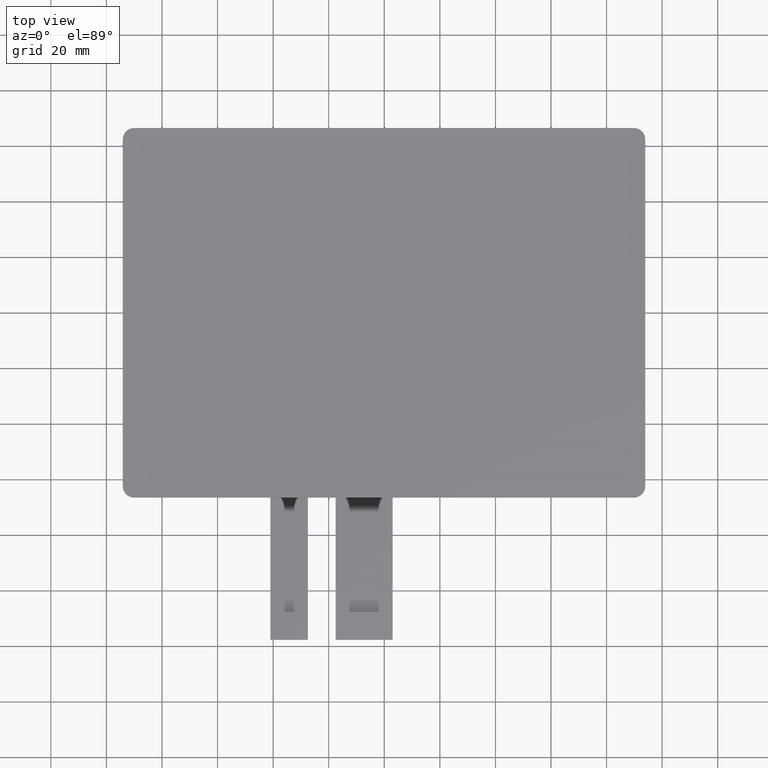
[diagram: clean part render]
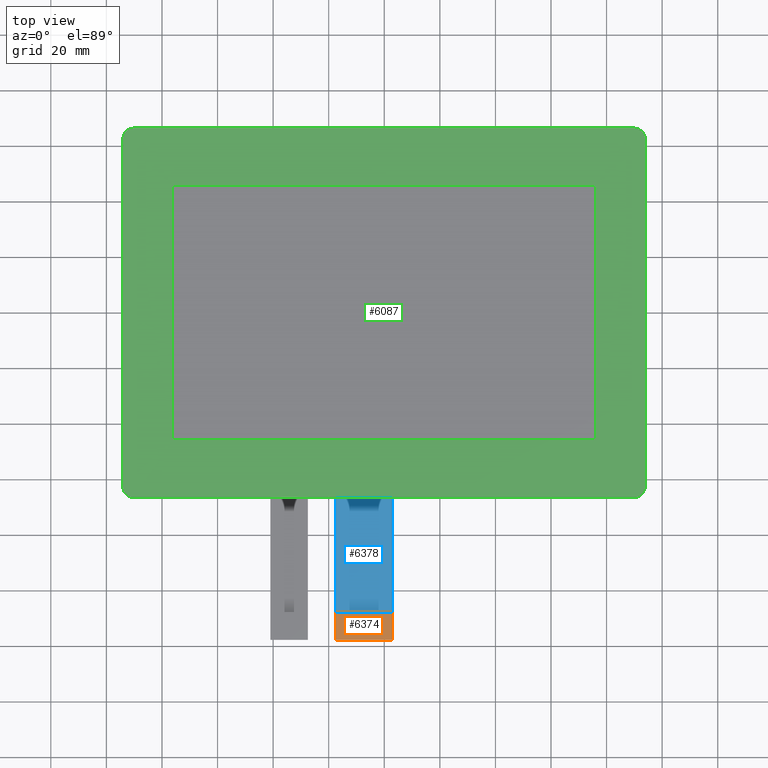
[diagram: same view with three faces highlighted in distinct colors, each labeled with its STEP entity id]
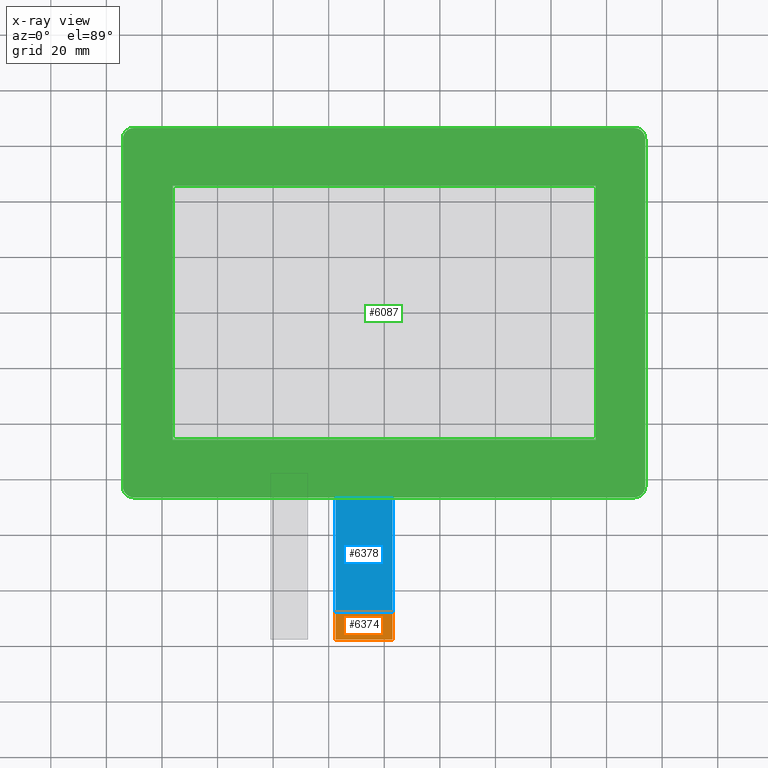
[diagram: x-ray of the same camera — body ghosted, the three highlighted faces saturated]
A machine part, top view with three faces highlighted in distinct colors.
The next image is the same camera in x-ray (body ghosted, the three faces saturated) — at least one of them is partly hidden behind the body in this view.
Their STEP definitions:

[orange] entity #6374 — the highlighted planar face has unit normal (0, 0, 1).
#330=FACE_OUTER_BOUND('',#640,.T.);
#640=EDGE_LOOP('',(#5667,#5668,#5669,#5670,#5671,#5672));
#693=LINE('',#8365,#1581);
#1508=LINE('',#10008,#2396);
#1514=LINE('',#10020,#2402);
#1516=LINE('',#10023,#2404);
#1581=VECTOR('',#6819,10.);
#2396=VECTOR('',#8192,10.);
#2402=VECTOR('',#8200,10.);
#2404=VECTOR('',#8204,10.);
#2448=CIRCLE('',#6437,0.2);
#2449=CIRCLE('',#6441,0.2);
#2481=VERTEX_POINT('',#8350);
#2482=VERTEX_POINT('',#8352);
#2486=VERTEX_POINT('',#8364);
#2647=VERTEX_POINT('',#8688);
#3035=VERTEX_POINT('',#10007);
#3040=VERTEX_POINT('',#10019);
#3093=EDGE_CURVE('',#2481,#2482,#2448,.T.);
#3099=EDGE_CURVE('',#2486,#2482,#693,.T.);
#3261=EDGE_CURVE('',#2486,#2647,#2449,.T.);
#3920=EDGE_CURVE('',#3035,#2647,#1508,.T.);
#3926=EDGE_CURVE('',#3040,#3035,#1514,.T.);
#3928=EDGE_CURVE('',#2481,#3040,#1516,.T.);
#5667=ORIENTED_EDGE('',*,*,#3093,.F.);
#5668=ORIENTED_EDGE('',*,*,#3928,.T.);
#5669=ORIENTED_EDGE('',*,*,#3926,.T.);
#5670=ORIENTED_EDGE('',*,*,#3920,.T.);
#5671=ORIENTED_EDGE('',*,*,#3261,.F.);
#5672=ORIENTED_EDGE('',*,*,#3099,.T.);
#6050=PLANE('',#6720);
#6374=ADVANCED_FACE('',(#330),#6050,.T.);
#6437=AXIS2_PLACEMENT_3D('',#8353,#6808,#6809);
#6441=AXIS2_PLACEMENT_3D('',#8689,#6983,#6984);
#6720=AXIS2_PLACEMENT_3D('',#10022,#8202,#8203);
#6808=DIRECTION('center_axis',(0.,0.,-1.));
#6809=DIRECTION('ref_axis',(0.707106781186555,-0.70710678118654,0.));
#6819=DIRECTION('',(1.,0.,0.));
#6983=DIRECTION('center_axis',(0.,0.,-1.));
#6984=DIRECTION('ref_axis',(-0.707106781186555,-0.70710678118654,0.));
#8192=DIRECTION('',(2.22044604925031E-16,-1.,0.));
#8200=DIRECTION('',(-1.,0.,0.));
#8202=DIRECTION('center_axis',(0.,0.,1.));
#8203=DIRECTION('ref_axis',(1.,0.,0.));
#8204=DIRECTION('',(0.,1.,0.));
#8350=CARTESIAN_POINT('',(3.00000000000003,-117.52,-0.95));
#8352=CARTESIAN_POINT('',(2.80000000000003,-117.72,-0.95));
#8353=CARTESIAN_POINT('Origin',(2.80000000000003,-117.52,-0.95));
#8364=CARTESIAN_POINT('',(-17.3,-117.72,-0.95));
#8365=CARTESIAN_POINT('',(-17.5,-117.72,-0.95));
#8688=CARTESIAN_POINT('',(-17.5,-117.52,-0.95));
#8689=CARTESIAN_POINT('Origin',(-17.3,-117.52,-0.95));
#10007=CARTESIAN_POINT('',(-17.5,-107.72,-0.95));
#10008=CARTESIAN_POINT('',(-17.5,-107.72,-0.95));
#10019=CARTESIAN_POINT('',(3.00000000000003,-107.72,-0.95));
#10020=CARTESIAN_POINT('',(3.00000000000003,-107.72,-0.95));
#10022=CARTESIAN_POINT('Origin',(-7.24999999999997,-112.72,-0.95));
#10023=CARTESIAN_POINT('',(3.00000000000003,-117.72,-0.95));

[blue] entity #6378 — the highlighted planar face has unit normal (0, 0, 1).
#334=FACE_OUTER_BOUND('',#644,.T.);
#644=EDGE_LOOP('',(#5691,#5692,#5693,#5694));
#1510=LINE('',#10012,#2398);
#1513=LINE('',#10018,#2401);
#1523=LINE('',#10037,#2411);
#1524=LINE('',#10039,#2412);
#2398=VECTOR('',#8194,10.);
#2401=VECTOR('',#8199,10.);
#2411=VECTOR('',#8217,10.);
#2412=VECTOR('',#8220,10.);
#3036=VERTEX_POINT('',#10009);
#3037=VERTEX_POINT('',#10011);
#3039=VERTEX_POINT('',#10017);
#3044=VERTEX_POINT('',#10035);
#3922=EDGE_CURVE('',#3037,#3036,#1510,.T.);
#3925=EDGE_CURVE('',#3036,#3039,#1513,.T.);
#3935=EDGE_CURVE('',#3039,#3044,#1523,.T.);
#3936=EDGE_CURVE('',#3037,#3044,#1524,.T.);
#5691=ORIENTED_EDGE('',*,*,#3925,.T.);
#5692=ORIENTED_EDGE('',*,*,#3935,.T.);
#5693=ORIENTED_EDGE('',*,*,#3936,.F.);
#5694=ORIENTED_EDGE('',*,*,#3922,.T.);
#6054=PLANE('',#6724);
#6378=ADVANCED_FACE('',(#334),#6054,.T.);
#6724=AXIS2_PLACEMENT_3D('',#10038,#8218,#8219);
#8194=DIRECTION('',(3.33066907387547E-16,-1.,0.));
#8199=DIRECTION('',(1.,0.,0.));
#8217=DIRECTION('',(-2.22044604925031E-16,1.,0.));
#8218=DIRECTION('center_axis',(0.,0.,1.));
#8219=DIRECTION('ref_axis',(1.,0.,0.));
#8220=DIRECTION('',(1.,1.57851614875615E-16,0.));
#10009=CARTESIAN_POINT('',(-17.5,-107.72,-1.25));
#10011=CARTESIAN_POINT('',(-17.5,-57.72,-1.25));
#10012=CARTESIAN_POINT('',(-17.5,-57.72,-1.25));
#10017=CARTESIAN_POINT('',(3.00000000000003,-107.72,-1.25));
#10018=CARTESIAN_POINT('',(-2.12499999999998,-107.72,-1.25));
#10035=CARTESIAN_POINT('',(3.00000000000002,-57.72,-1.25));
#10037=CARTESIAN_POINT('',(3.00000000000003,-117.72,-1.25));
#10038=CARTESIAN_POINT('Origin',(-7.24999999999998,-87.72,-1.25));
#10039=CARTESIAN_POINT('',(38.525,-57.72,-1.25));

[green] entity #6087 — the highlighted planar face has unit normal (0, 0, 1).
#39=FACE_BOUND('',#352,.T.);
#43=FACE_OUTER_BOUND('',#351,.T.);
#351=EDGE_LOOP('',(#3963,#3964,#3965,#3966,#3967,#3968,#3969,#3970));
#352=EDGE_LOOP('',(#3971,#3972,#3973,#3974));
#663=LINE('',#8285,#1551);
#664=LINE('',#8289,#1552);
#665=LINE('',#8293,#1553);
#666=LINE('',#8296,#1554);
#667=LINE('',#8299,#1555);
#668=LINE('',#8301,#1556);
#669=LINE('',#8303,#1557);
#670=LINE('',#8304,#1558);
#1551=VECTOR('',#6747,10.);
#1552=VECTOR('',#6750,10.);
#1553=VECTOR('',#6753,10.);
#1554=VECTOR('',#6756,10.);
#1555=VECTOR('',#6757,10.);
#1556=VECTOR('',#6758,10.);
#1557=VECTOR('',#6759,10.);
#1558=VECTOR('',#6760,10.);
#2439=CIRCLE('',#6418,4.);
#2440=CIRCLE('',#6419,4.);
#2441=CIRCLE('',#6420,4.);
#2442=CIRCLE('',#6421,4.);
#2455=VERTEX_POINT('',#8281);
#2456=VERTEX_POINT('',#8282);
#2457=VERTEX_POINT('',#8284);
#2458=VERTEX_POINT('',#8286);
#2459=VERTEX_POINT('',#8288);
#2460=VERTEX_POINT('',#8290);
#2461=VERTEX_POINT('',#8292);
#2462=VERTEX_POINT('',#8294);
#2463=VERTEX_POINT('',#8297);
#2464=VERTEX_POINT('',#8298);
#2465=VERTEX_POINT('',#8300);
#2466=VERTEX_POINT('',#8302);
#3059=EDGE_CURVE('',#2455,#2456,#2439,.T.);
#3060=EDGE_CURVE('',#2455,#2457,#663,.T.);
#3061=EDGE_CURVE('',#2458,#2457,#2440,.T.);
#3062=EDGE_CURVE('',#2458,#2459,#664,.T.);
#3063=EDGE_CURVE('',#2460,#2459,#2441,.T.);
#3064=EDGE_CURVE('',#2460,#2461,#665,.T.);
#3065=EDGE_CURVE('',#2462,#2461,#2442,.T.);
#3066=EDGE_CURVE('',#2462,#2456,#666,.T.);
#3067=EDGE_CURVE('',#2463,#2464,#667,.T.);
#3068=EDGE_CURVE('',#2465,#2463,#668,.T.);
#3069=EDGE_CURVE('',#2466,#2465,#669,.T.);
#3070=EDGE_CURVE('',#2464,#2466,#670,.T.);
#3963=ORIENTED_EDGE('',*,*,#3059,.F.);
#3964=ORIENTED_EDGE('',*,*,#3060,.T.);
#3965=ORIENTED_EDGE('',*,*,#3061,.F.);
#3966=ORIENTED_EDGE('',*,*,#3062,.T.);
#3967=ORIENTED_EDGE('',*,*,#3063,.F.);
#3968=ORIENTED_EDGE('',*,*,#3064,.T.);
#3969=ORIENTED_EDGE('',*,*,#3065,.F.);
#3970=ORIENTED_EDGE('',*,*,#3066,.T.);
#3971=ORIENTED_EDGE('',*,*,#3067,.F.);
#3972=ORIENTED_EDGE('',*,*,#3068,.F.);
#3973=ORIENTED_EDGE('',*,*,#3069,.F.);
#3974=ORIENTED_EDGE('',*,*,#3070,.F.);
#5771=PLANE('',#6417);
#6087=ADVANCED_FACE('',(#43,#39),#5771,.T.);
#6417=AXIS2_PLACEMENT_3D('',#8280,#6743,#6744);
#6418=AXIS2_PLACEMENT_3D('',#8283,#6745,#6746);
#6419=AXIS2_PLACEMENT_3D('',#8287,#6748,#6749);
#6420=AXIS2_PLACEMENT_3D('',#8291,#6751,#6752);
#6421=AXIS2_PLACEMENT_3D('',#8295,#6754,#6755);
#6743=DIRECTION('center_axis',(0.,0.,1.));
#6744=DIRECTION('ref_axis',(1.,0.,0.));
#6745=DIRECTION('center_axis',(0.,0.,-1.));
#6746=DIRECTION('ref_axis',(0.707106781186546,0.707106781186549,0.));
#6747=DIRECTION('',(-1.,0.,0.));
#6748=DIRECTION('center_axis',(0.,0.,-1.));
#6749=DIRECTION('ref_axis',(-0.707106781186546,0.707106781186549,0.));
#6750=DIRECTION('',(2.6712132923312E-16,-1.,0.));
#6751=DIRECTION('center_axis',(0.,0.,-1.));
#6752=DIRECTION('ref_axis',(-0.707106781186546,-0.707106781186549,0.));
#6753=DIRECTION('',(1.,1.41730598888318E-16,0.));
#6754=DIRECTION('center_axis',(0.,0.,-1.));
#6755=DIRECTION('ref_axis',(0.707106781186546,-0.707106781186549,0.));
#6756=DIRECTION('',(0.,1.,0.));
#6757=DIRECTION('',(-1.94264746216125E-16,1.,0.));
#6758=DIRECTION('',(1.,2.3311769545935E-16,0.));
#6759=DIRECTION('',(1.94264746216125E-16,-1.,0.));
#6760=DIRECTION('',(-1.,-1.74838271594513E-16,0.));
#8280=CARTESIAN_POINT('Origin',(-0.0999999999999979,-0.0199999999999889,
1.1));
#8281=CARTESIAN_POINT('',(89.9,66.48,1.1));
#8282=CARTESIAN_POINT('',(93.9,62.48,1.1));
#8283=CARTESIAN_POINT('Origin',(89.9,62.48,1.1));
#8284=CARTESIAN_POINT('',(-90.1,66.48,1.1));
#8285=CARTESIAN_POINT('',(93.9,66.48,1.1));
#8286=CARTESIAN_POINT('',(-94.1,62.48,1.1));
#8287=CARTESIAN_POINT('Origin',(-90.1,62.48,1.1));
#8288=CARTESIAN_POINT('',(-94.1,-62.52,1.1));
#8289=CARTESIAN_POINT('',(-94.1,66.48,1.1));
#8290=CARTESIAN_POINT('',(-90.1,-66.52,1.1));
#8291=CARTESIAN_POINT('Origin',(-90.1,-62.52,1.1));
#8292=CARTESIAN_POINT('',(89.9,-66.52,1.1));
#8293=CARTESIAN_POINT('',(-94.1,-66.52,1.1));
#8294=CARTESIAN_POINT('',(93.9,-62.52,1.1));
#8295=CARTESIAN_POINT('Origin',(89.9,-62.52,1.1));
#8296=CARTESIAN_POINT('',(93.9,-66.52,1.1));
#8297=CARTESIAN_POINT('',(76.2,-45.72,1.1));
#8298=CARTESIAN_POINT('',(76.2,45.72,1.1));
#8299=CARTESIAN_POINT('',(76.2,-22.87,1.1));
#8300=CARTESIAN_POINT('',(-76.2,-45.72,1.1));
#8301=CARTESIAN_POINT('',(-38.15,-45.72,1.1));
#8302=CARTESIAN_POINT('',(-76.2,45.72,1.1));
#8303=CARTESIAN_POINT('',(-76.2,22.85,1.1));
#8304=CARTESIAN_POINT('',(38.05,45.72,1.1));